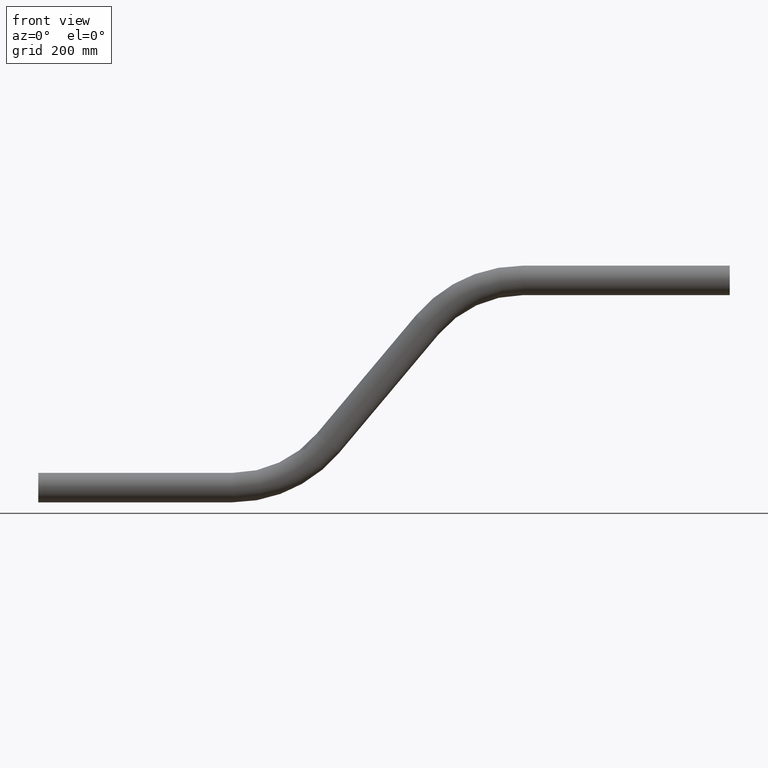
[diagram: clean part render]
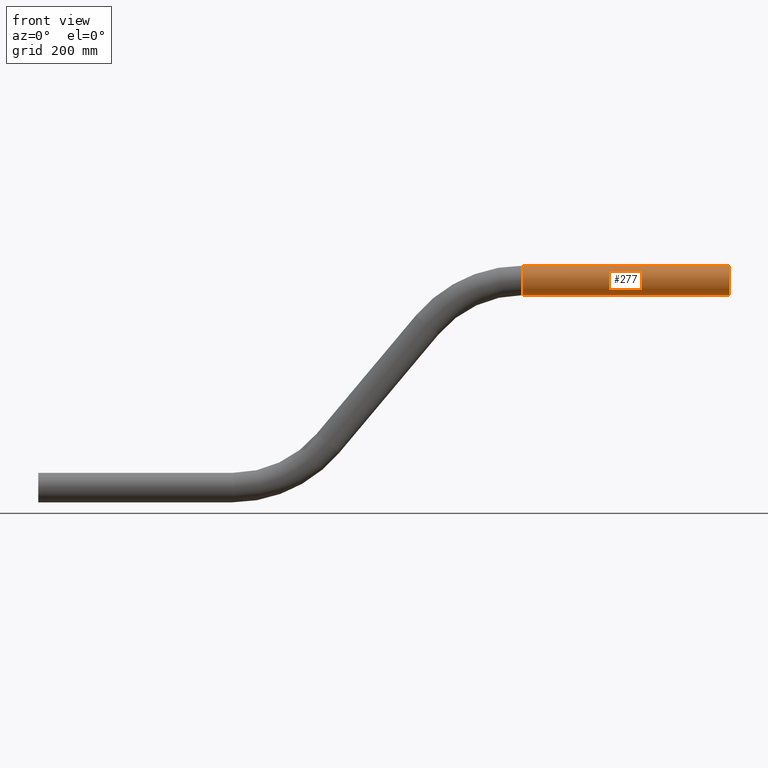
[diagram: same view with one face highlighted and labeled with its STEP entity id]
A machine part, front view. The second image highlights one B-rep face of the part: STEP entity #277.
In plain terms, the highlighted cylindrical surface (edge-blend (fillet) strip) has radius 44.45 mm, axis along (-1, -0, -0).
Its self-contained STEP definition (entity closure, byte-faithful):
#37 = VERTEX_POINT ( 'NONE', #370 ) ;
#51 = DIRECTION ( 'NONE',  ( 1.000000000000000000, 0.000000000000000000, 0.000000000000000000 ) ) ;
#69 = ORIENTED_EDGE ( 'NONE', *, *, #411, .T. ) ;
#72 = CARTESIAN_POINT ( 'NONE',  ( 2086.038216172909415, 0.000000000000000000, 669.4500000000000455 ) ) ;
#90 = EDGE_CURVE ( 'NONE', #219, #37, #504, .T. ) ;
#99 = VECTOR ( 'NONE', #596, 1000.000000000000000 ) ;
#130 = VERTEX_POINT ( 'NONE', #608 ) ;
#157 = AXIS2_PLACEMENT_3D ( 'NONE', #465, #51, #657 ) ;
#178 = DIRECTION ( 'NONE',  ( 1.000000000000000000, 0.000000000000000000, 1.165734175856414367E-15 ) ) ;
#219 = VERTEX_POINT ( 'NONE', #72 ) ;
#222 = CARTESIAN_POINT ( 'NONE',  ( 2086.038216172909415, 5.443555022209986486E-15, 580.5499999999999545 ) ) ;
#249 = EDGE_CURVE ( 'NONE', #37, #530, #427, .T. ) ;
#271 = DIRECTION ( 'NONE',  ( 0.000000000000000000, 0.000000000000000000, 1.000000000000000000 ) ) ;
#274 = ORIENTED_EDGE ( 'NONE', *, *, #299, .T. ) ;
#277 = ADVANCED_FACE ( 'NONE', ( #474 ), #620, .T. ) ;
#278 = CARTESIAN_POINT ( 'NONE',  ( 2086.038216172909415, 0.000000000000000000, 625.0000000000000000 ) ) ;
#299 = EDGE_CURVE ( 'NONE', #130, #530, #523, .T. ) ;
#325 = DIRECTION ( 'NONE',  ( -1.000000000000000000, -0.000000000000000000, -3.551948570938521745E-16 ) ) ;
#354 = CARTESIAN_POINT ( 'NONE',  ( 1460.903587981034661, 5.443555022210016463E-15, 580.5499999999998408 ) ) ;
#370 = CARTESIAN_POINT ( 'NONE',  ( 2086.038216172909415, 5.443555022209988853E-15, 580.5499999999999545 ) ) ;
#379 = AXIS2_PLACEMENT_3D ( 'NONE', #532, #178, #518 ) ;
#396 = LINE ( 'NONE', #536, #99 ) ;
#411 = EDGE_CURVE ( 'NONE', #219, #130, #396, .T. ) ;
#427 = LINE ( 'NONE', #222, #539 ) ;
#441 = ORIENTED_EDGE ( 'NONE', *, *, #249, .F. ) ;
#465 = CARTESIAN_POINT ( 'NONE',  ( 2086.038216172909415, 0.000000000000000000, 625.0000000000000000 ) ) ;
#474 = FACE_OUTER_BOUND ( 'NONE', #583, .T. ) ;
#504 = CIRCLE ( 'NONE', #157, 44.44999999999998863 ) ;
#518 = DIRECTION ( 'NONE',  ( 0.000000000000000000, 0.000000000000000000, -1.000000000000000000 ) ) ;
#523 = CIRCLE ( 'NONE', #379, 44.44999999999998863 ) ;
#530 = VERTEX_POINT ( 'NONE', #354 ) ;
#532 = CARTESIAN_POINT ( 'NONE',  ( 1460.903587981034661, 0.000000000000000000, 624.9999999999997726 ) ) ;
#536 = CARTESIAN_POINT ( 'NONE',  ( 2086.038216172909415, 0.000000000000000000, 669.4500000000000455 ) ) ;
#537 = ORIENTED_EDGE ( 'NONE', *, *, #90, .F. ) ;
#539 = VECTOR ( 'NONE', #618, 1000.000000000000000 ) ;
#583 = EDGE_LOOP ( 'NONE', ( #441, #537, #69, #274 ) ) ;
#596 = DIRECTION ( 'NONE',  ( -1.000000000000000000, -0.000000000000000000, -3.551948570938521745E-16 ) ) ;
#601 = AXIS2_PLACEMENT_3D ( 'NONE', #278, #325, #271 ) ;
#608 = CARTESIAN_POINT ( 'NONE',  ( 1460.903587981034661, 0.000000000000000000, 669.4499999999998181 ) ) ;
#618 = DIRECTION ( 'NONE',  ( -1.000000000000000000, -0.000000000000000000, -3.551948570938521745E-16 ) ) ;
#620 = CYLINDRICAL_SURFACE ( 'NONE', #601, 44.44999999999998863 ) ;
#657 = DIRECTION ( 'NONE',  ( 0.000000000000000000, 0.000000000000000000, -1.000000000000000000 ) ) ;